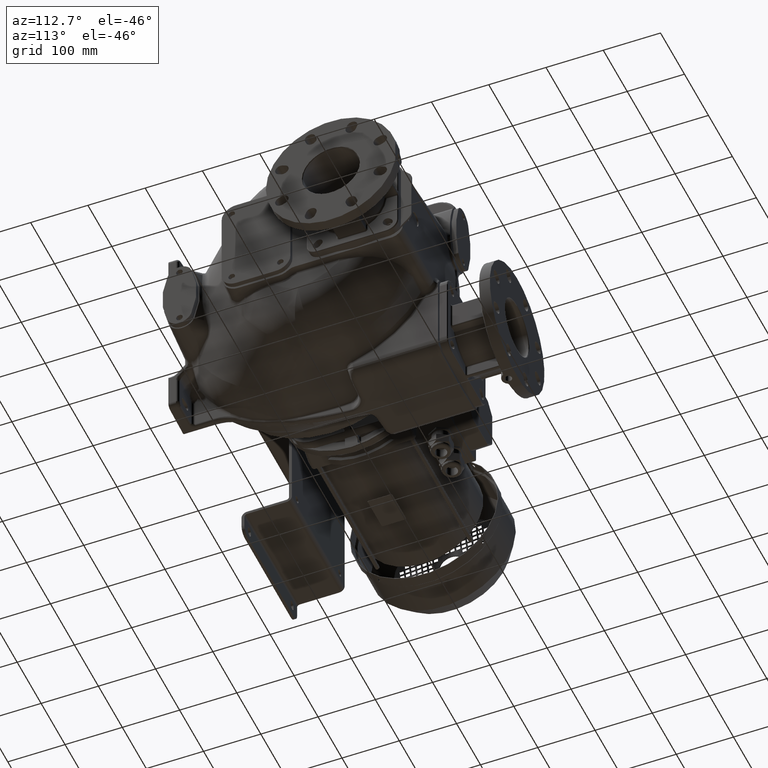
[diagram: clean part render]
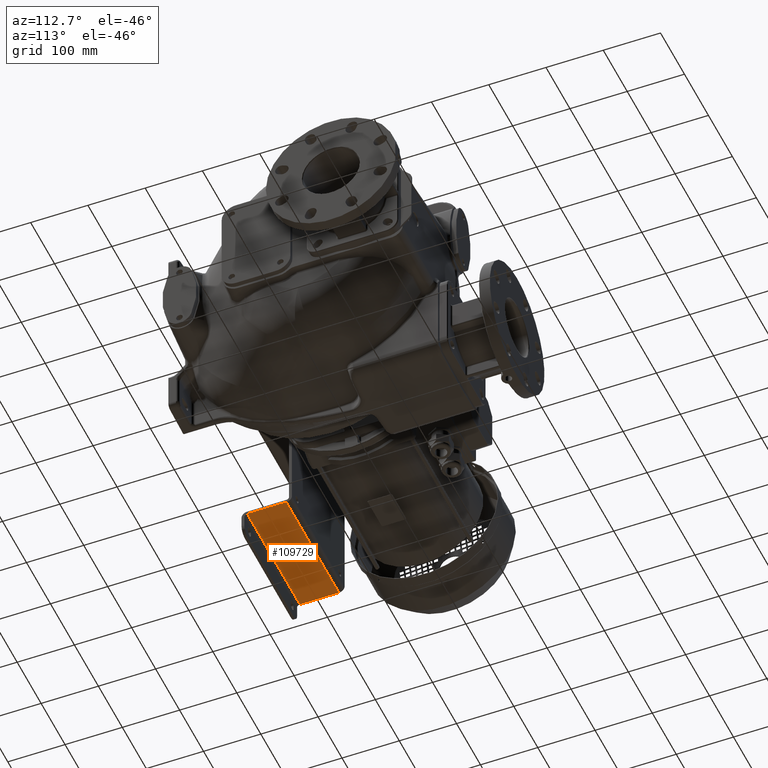
[diagram: same view with one face highlighted and labeled with its STEP entity id]
A machine part, auxiliary view. The second image highlights one B-rep face of the part: STEP entity #109729.
In plain terms, the highlighted planar face has unit normal (0, 0, -1).
Its self-contained STEP definition (entity closure, byte-faithful):
#108763=DIRECTION('',(0.E0,1.E0,0.E0));
#108764=VECTOR('',#108763,6.8E1);
#108765=CARTESIAN_POINT('',(-5.005E2,1.E1,-1.49E2));
#108766=LINE('',#108765,#108764);
#108775=DIRECTION('',(1.E0,0.E0,0.E0));
#108776=VECTOR('',#108775,2.2E2);
#108777=CARTESIAN_POINT('',(-5.005E2,1.E1,-1.49E2));
#108778=LINE('',#108777,#108776);
#108779=DIRECTION('',(0.E0,1.E0,0.E0));
#108780=VECTOR('',#108779,6.8E1);
#108781=CARTESIAN_POINT('',(-2.805E2,1.E1,-1.49E2));
#108782=LINE('',#108781,#108780);
#108805=DIRECTION('',(1.E0,0.E0,0.E0));
#108806=VECTOR('',#108805,2.2E2);
#108807=CARTESIAN_POINT('',(-5.005E2,7.8E1,-1.49E2));
#108808=LINE('',#108807,#108806);
#109279=CARTESIAN_POINT('',(-5.005E2,1.E1,-1.49E2));
#109280=CARTESIAN_POINT('',(-5.005E2,7.8E1,-1.49E2));
#109281=VERTEX_POINT('',#109279);
#109282=VERTEX_POINT('',#109280);
#109291=CARTESIAN_POINT('',(-2.805E2,1.E1,-1.49E2));
#109292=CARTESIAN_POINT('',(-2.805E2,7.8E1,-1.49E2));
#109293=VERTEX_POINT('',#109291);
#109294=VERTEX_POINT('',#109292);
#109716=CARTESIAN_POINT('',(-5.005E2,1.E1,-1.49E2));
#109717=DIRECTION('',(0.E0,0.E0,-1.E0));
#109718=DIRECTION('',(0.E0,1.E0,0.E0));
#109719=AXIS2_PLACEMENT_3D('',#109716,#109717,#109718);
#109720=PLANE('',#109719);
#109721=ORIENTED_EDGE('',*,*,#109707,.F.);
#109722=ORIENTED_EDGE('',*,*,#109607,.T.);
#109724=ORIENTED_EDGE('',*,*,#109723,.T.);
#109726=ORIENTED_EDGE('',*,*,#109725,.F.);
#109727=EDGE_LOOP('',(#109721,#109722,#109724,#109726));
#109728=FACE_OUTER_BOUND('',#109727,.F.);
#109729=ADVANCED_FACE('',(#109728),#109720,.T.);
#109607=EDGE_CURVE('',#109281,#109293,#108778,.T.);
#109707=EDGE_CURVE('',#109281,#109282,#108766,.T.);
#109723=EDGE_CURVE('',#109293,#109294,#108782,.T.);
#109725=EDGE_CURVE('',#109282,#109294,#108808,.T.);